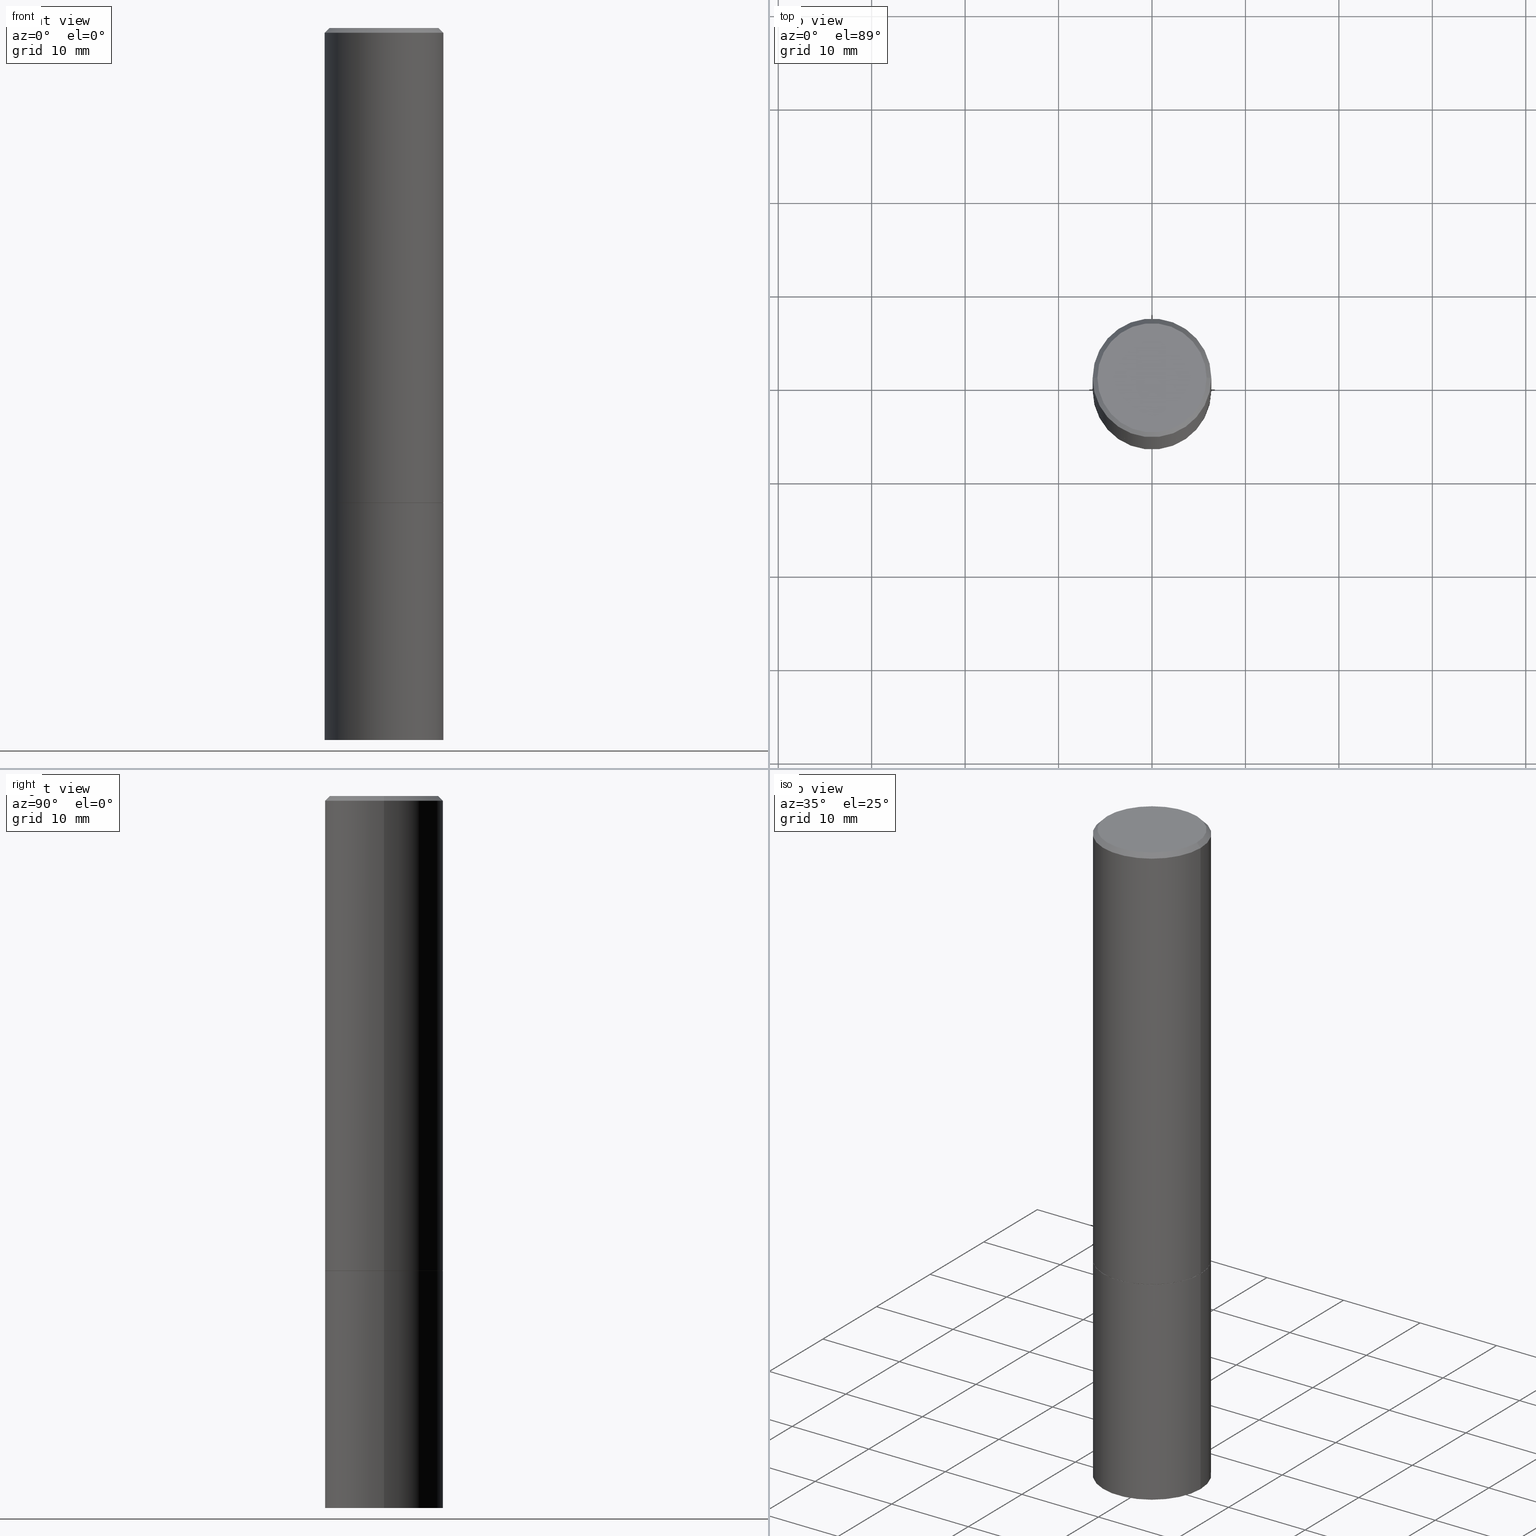
[diagram: canonical four-view strip — front | top / right | iso, engineering-drawing reading convention]
A machine part, canonical four-view strip (front | top / right | iso — engineering-drawing reading convention). The complete STEP part file that produces these views, byte-faithful:
ISO-10303-21;
HEADER;
FILE_DESCRIPTION (( 'STEP AP203' ),
    '1' );
FILE_NAME ('38507.STEP',
    '2024-02-27T23:01:46',
    ( '' ),
    ( '' ),
    'SwSTEP 2.0',
    'SolidWorks 2023',
    '' );
FILE_SCHEMA (( 'CONFIG_CONTROL_DESIGN' ));
ENDSEC;

DATA;
#1 = AXIS2_PLACEMENT_3D ( 'NONE', #33, #71, #12 ) ;
#2 = UNCERTAINTY_MEASURE_WITH_UNIT (LENGTH_MEASURE( 1.000000000000000082E-05 ), #295, 'distance_accuracy_value', 'NONE');
#3 = ADVANCED_FACE ( 'NONE', ( #180 ), #85, .T. ) ;
#4 = MANIFOLD_SOLID_BREP ( 'Body-Move/Copy2[2]', #96 ) ;
#5 = CONICAL_SURFACE ( 'NONE', #162, 0.2489999999999999991, 0.7853981633972775267 ) ;
#6 = LENGTH_MEASURE_WITH_UNIT ( LENGTH_MEASURE( 0.02539999999999999897 ), #76 );
#7 = ADVANCED_FACE ( 'NONE', ( #191 ), #263, .T. ) ;
#8 = DIRECTION ( 'NONE',  ( -2.445468806185136877E-29, 3.491481338843145188E-15, 1.000000000000000000 ) ) ;
#9 = DIRECTION ( 'NONE',  ( -2.445468806185136597E-29, 3.491481338843145583E-15, 1.000000000000000000 ) ) ;
#10 = EDGE_LOOP ( 'NONE', ( #182, #90, #156, #203 ) ) ;
#11 = LOCAL_TIME ( 18, 1, 46.00000000000000000, #233 ) ;
#12 = DIRECTION ( 'NONE',  ( -1.000000000000000000, 6.982962677686266711E-15, 0.000000000000000000 ) ) ;
#13 = CARTESIAN_POINT ( 'NONE',  ( -0.2500000000000000000, -6.952346507707613689E-15, -2.000000000000000444 ) ) ;
#14 = CC_DESIGN_APPROVAL ( #293, ( #112 ) ) ;
#15 = ORIENTED_EDGE ( 'NONE', *, *, #43, .T. ) ;
#16 = CARTESIAN_POINT ( 'NONE',  ( -0.2499999999999996669, 1.675911042644701210E-15, -0.02000000000000007327 ) ) ;
#17 = ORIENTED_EDGE ( 'NONE', *, *, #179, .T. ) ;
#18 = CIRCLE ( 'NONE', #325, 0.2489999999999999991 ) ;
#19 = FACE_OUTER_BOUND ( 'NONE', #123, .T. ) ;
#20 = APPROVAL_ROLE ( '' ) ;
#21 = CC_DESIGN_SECURITY_CLASSIFICATION ( #77, ( #246 ) ) ;
#22 = VERTEX_POINT ( 'NONE', #130 ) ;
#23 = CARTESIAN_POINT ( 'NONE',  ( -0.2500000000000000000, -1.748293572161902502E-15, -1.999000000000000110 ) ) ;
#24 = ORIENTED_EDGE ( 'NONE', *, *, #351, .F. ) ;
#25 = AXIS2_PLACEMENT_3D ( 'NONE', #210, #62, #159 ) ;
#26 = AXIS2_PLACEMENT_3D ( 'NONE', #253, #286, #204 ) ;
#27 = DIRECTION ( 'NONE',  ( -2.445468806185136597E-29, 3.491481338843145583E-15, 1.000000000000000000 ) ) ;
#28 = DATE_TIME_ROLE ( 'classification_date' ) ;
#29 = ADVANCED_FACE ( 'NONE', ( #219 ), #195, .T. ) ;
#30 = PERSON_AND_ORGANIZATION ( #165, #252 ) ;
#31 = DIRECTION ( 'NONE',  ( 1.000000000000000000, -6.982962677686267499E-15, 4.876225828469316729E-29 ) ) ;
#32 = VECTOR ( 'NONE', #349, 39.37007874015748143 ) ;
#33 = CARTESIAN_POINT ( 'NONE',  ( 4.890937612370290675E-31, -6.982962677686316261E-17, -0.02000000000000007327 ) ) ;
#34 = EDGE_CURVE ( 'NONE', #53, #142, #18, .T. ) ;
#35 = CARTESIAN_POINT ( 'NONE',  ( 7.336406418555409790E-29, -1.047444401652943635E-14, -3.000000000000000444 ) ) ;
#36 = CARTESIAN_POINT ( 'NONE',  ( 4.888492143564088712E-29, -6.979471196347448158E-15, -1.999000000000000110 ) ) ;
#37 = FACE_OUTER_BOUND ( 'NONE', #10, .T. ) ;
#38 = ORIENTED_EDGE ( 'NONE', *, *, #184, .T. ) ;
#39 = ORIENTED_EDGE ( 'NONE', *, *, #220, .T. ) ;
#40 = CARTESIAN_POINT ( 'NONE',  ( 4.888492143564088712E-29, -6.979471196347448158E-15, -1.999000000000000110 ) ) ;
#41 = FACE_OUTER_BOUND ( 'NONE', #109, .T. ) ;
#42 = FACE_OUTER_BOUND ( 'NONE', #362, .T. ) ;
#43 = EDGE_CURVE ( 'NONE', #181, #56, #303, .T. ) ;
#44 = FACE_OUTER_BOUND ( 'NONE', #54, .T. ) ;
#45 = CLOSED_SHELL ( 'NONE', ( #3, #65, #121, #243 ) ) ;
#46 = DIRECTION ( 'NONE',  ( 1.000000000000000000, -6.982962677686266711E-15, 0.000000000000000000 ) ) ;
#47 = DIRECTION ( 'NONE',  ( 1.000000000000000000, -6.982962677686266711E-15, 0.000000000000000000 ) ) ;
#48 = LOCAL_TIME ( 18, 1, 46.00000000000000000, #296 ) ;
#49 = VERTEX_POINT ( 'NONE', #23 ) ;
#50 = ADVANCED_FACE ( 'NONE', ( #75 ), #265, .T. ) ;
#51 = ORIENTED_EDGE ( 'NONE', *, *, #352, .F. ) ;
#52 = SHAPE_DEFINITION_REPRESENTATION ( #224, #322 ) ;
#53 = VERTEX_POINT ( 'NONE', #188 ) ;
#54 = EDGE_LOOP ( 'NONE', ( #24, #364 ) ) ;
#55 = DIRECTION ( 'NONE',  ( 1.000000000000000000, -6.982962677686266711E-15, 4.876176775795935793E-29 ) ) ;
#56 = VERTEX_POINT ( 'NONE', #307 ) ;
#57 = LINE ( 'NONE', #185, #287 ) ;
#58 = CARTESIAN_POINT ( 'NONE',  ( -0.2489999999999999991, -5.213711265643643286E-15, -2.000000000000000444 ) ) ;
#59 = CARTESIAN_POINT ( 'NONE',  ( 4.890937612370290675E-31, -6.982962677686316261E-17, -0.02000000000000007327 ) ) ;
#60 = AXIS2_PLACEMENT_3D ( 'NONE', #356, #230, #331 ) ;
#61 = PERSON_AND_ORGANIZATION ( #165, #252 ) ;
#62 = DIRECTION ( 'NONE',  ( -2.445468806185136597E-29, 3.491481338843145583E-15, 1.000000000000000000 ) ) ;
#63 = DIRECTION ( 'NONE',  ( -2.445468806185136597E-29, 3.491481338843145583E-15, 1.000000000000000000 ) ) ;
#64 = APPLICATION_PROTOCOL_DEFINITION ( 'international standard', 'config_control_design', 1994, #250 ) ;
#65 = ADVANCED_FACE ( 'NONE', ( #260 ), #105, .T. ) ;
#66 = LOCAL_TIME ( 18, 1, 46.00000000000000000, #120 ) ;
#67 = AXIS2_PLACEMENT_3D ( 'NONE', #116, #216, #129 ) ;
#68 = CC_DESIGN_PERSON_AND_ORGANIZATION_ASSIGNMENT ( #317, #366, ( #77 ) ) ;
#69 = DIRECTION ( 'NONE',  ( -2.445468806185136597E-29, 3.491481338843145583E-15, 1.000000000000000000 ) ) ;
#70 = CARTESIAN_POINT ( 'NONE',  ( 4.890937612370290675E-31, -6.982962677686316261E-17, -0.02000000000000007327 ) ) ;
#71 = DIRECTION ( 'NONE',  ( 2.445468806185136597E-29, -3.491481338843145583E-15, -1.000000000000000000 ) ) ;
#72 = DIRECTION ( 'NONE',  ( -2.445468806185136597E-29, 3.491481338843145583E-15, 1.000000000000000000 ) ) ;
#73 = EDGE_CURVE ( 'NONE', #176, #56, #217, .T. ) ;
#74 = ORIENTED_EDGE ( 'NONE', *, *, #352, .T. ) ;
#75 = FACE_OUTER_BOUND ( 'NONE', #342, .T. ) ;
#76 =( LENGTH_UNIT ( ) NAMED_UNIT ( * ) SI_UNIT ( $, .METRE. ) );
#77 = SECURITY_CLASSIFICATION ( '', '', #208 ) ;
#78 = DATE_AND_TIME ( #152, #278 ) ;
#79 = CARTESIAN_POINT ( 'NONE',  ( -0.2299999999999996214, 1.640996229256269955E-15, 4.268512490089056766E-18 ) ) ;
#80 = PERSON_AND_ORGANIZATION_ROLE ( 'creator' ) ;
#81 = DIRECTION ( 'NONE',  ( -1.000000000000000000, 6.982962677686265922E-15, -4.876176775795935793E-29 ) ) ;
#82 = DIRECTION ( 'NONE',  ( -2.445468806185136597E-29, 3.491481338843145583E-15, 1.000000000000000000 ) ) ;
#83 = EDGE_LOOP ( 'NONE', ( #146, #311, #238, #234 ) ) ;
#84 = LINE ( 'NONE', #276, #301 ) ;
#85 = CYLINDRICAL_SURFACE ( 'NONE', #25, 0.2500000000000000000 ) ;
#86 = ORIENTED_EDGE ( 'NONE', *, *, #143, .T. ) ;
#87 = CARTESIAN_POINT ( 'NONE',  ( 0.000000000000000000, 0.000000000000000000, 0.000000000000000000 ) ) ;
#88 = ADVANCED_FACE ( 'NONE', ( #304 ), #189, .T. ) ;
#89 = CIRCLE ( 'NONE', #228, 0.2499999999999996669 ) ;
#90 = ORIENTED_EDGE ( 'NONE', *, *, #34, .T. ) ;
#91 = CARTESIAN_POINT ( 'NONE',  ( -1.043851414335219820E-46, 1.490343170380447200E-32, 4.268512490100411279E-18 ) ) ;
#92 = CARTESIAN_POINT ( 'NONE',  ( 0.000000000000000000, 0.000000000000000000, 0.000000000000000000 ) ) ;
#93 = PERSON_AND_ORGANIZATION ( #165, #252 ) ;
#94 = DIRECTION ( 'NONE',  ( -0.7071067811864267805, 7.493145998869918709E-15, 0.7071067811866682540 ) ) ;
#95 = DIRECTION ( 'NONE',  ( 1.000000000000000000, 0.000000000000000000, 0.000000000000000000 ) ) ;
#96 = CLOSED_SHELL ( 'NONE', ( #193, #50, #88, #29, #7, #306, #357, #239 ) ) ;
#97 = CARTESIAN_POINT ( 'NONE',  ( 0.2489999999999999991, -8.721720384430172617E-15, -2.000000000000000444 ) ) ;
#98 = CIRCLE ( 'NONE', #183, 0.2500000000000000000 ) ;
#99 = EDGE_LOOP ( 'NONE', ( #38, #86, #51, #211 ) ) ;
#100 = DESIGN_CONTEXT ( 'detailed design', #268, 'design' ) ;
#101 = DIRECTION ( 'NONE',  ( 1.000000000000000000, -6.982962677686266711E-15, 0.000000000000000000 ) ) ;
#102 = VERTEX_POINT ( 'NONE', #171 ) ;
#103 = EDGE_CURVE ( 'NONE', #56, #118, #277, .T. ) ;
#104 = ORIENTED_EDGE ( 'NONE', *, *, #43, .F. ) ;
#105 = PLANE ( 'NONE',  #136 ) ;
#106 = PERSON_AND_ORGANIZATION ( #165, #252 ) ;
#107 = CIRCLE ( 'NONE', #332, 0.2500000000000000000 ) ;
#108 = DIRECTION ( 'NONE',  ( 1.000000000000000000, -6.982962677686262766E-15, 0.000000000000000000 ) ) ;
#109 = EDGE_LOOP ( 'NONE', ( #147, #289 ) ) ;
#110 = ORIENTED_EDGE ( 'NONE', *, *, #154, .T. ) ;
#111 = DIRECTION ( 'NONE',  ( 2.438088387897960049E-29, -3.491481338843145188E-15, -1.000000000000000000 ) ) ;
#112 = PRODUCT_DEFINITION ( 'UNKNOWN', '', #246, #100 ) ;
#113 = CARTESIAN_POINT ( 'NONE',  ( 4.890937612370274875E-29, -6.982962677686292743E-15, -2.000000000000000444 ) ) ;
#114 = ORIENTED_EDGE ( 'NONE', *, *, #315, .T. ) ;
#115 = AXIS2_PLACEMENT_3D ( 'NONE', #70, #279, #47 ) ;
#116 = CARTESIAN_POINT ( 'NONE',  ( 1.745740669421615390E-15, 0.2499999999999930334, -2.000000000000000888 ) ) ;
#117 = ORIENTED_EDGE ( 'NONE', *, *, #73, .F. ) ;
#118 = VERTEX_POINT ( 'NONE', #199 ) ;
#119 = DIRECTION ( 'NONE',  ( 1.000000000000000000, -6.982962677686266711E-15, 4.876176775795935793E-29 ) ) ;
#120 = COORDINATED_UNIVERSAL_TIME_OFFSET ( 5, 0, .BEHIND. ) ;
#121 = ADVANCED_FACE ( 'NONE', ( #42 ), #172, .F. ) ;
#122 = CYLINDRICAL_SURFACE ( 'NONE', #173, 0.2500000000000000000 ) ;
#123 = EDGE_LOOP ( 'NONE', ( #257, #39, #285, #360 ) ) ;
#124 = VECTOR ( 'NONE', #178, 39.37007874015748143 ) ;
#125 = AXIS2_PLACEMENT_3D ( 'NONE', #36, #161, #133 ) ;
#126 = LINE ( 'NONE', #58, #168 ) ;
#127 = CC_DESIGN_PERSON_AND_ORGANIZATION_ASSIGNMENT ( #93, #316, ( #319 ) ) ;
#128 =( NAMED_UNIT ( * ) PLANE_ANGLE_UNIT ( ) SI_UNIT ( $, .RADIAN. ) );
#129 = DIRECTION ( 'NONE',  ( -1.000000000000000000, 6.982962677686265922E-15, -4.876176775795935793E-29 ) ) ;
#130 = CARTESIAN_POINT ( 'NONE',  ( -0.2500000000000000000, -6.952346507707613689E-15, -3.000000000000000444 ) ) ;
#131 = CIRCLE ( 'NONE', #314, 0.2500000000000000000 ) ;
#132 = CC_DESIGN_DATE_AND_TIME_ASSIGNMENT ( #344, #28, ( #77 ) ) ;
#133 = DIRECTION ( 'NONE',  ( 1.000000000000000000, -6.982962677686266711E-15, 0.000000000000000000 ) ) ;
#134 = EDGE_LOOP ( 'NONE', ( #117, #155, #114, #225 ) ) ;
#135 = DIRECTION ( 'NONE',  ( -2.445468806185136597E-29, 3.491481338843145583E-15, 1.000000000000000000 ) ) ;
#136 = AXIS2_PLACEMENT_3D ( 'NONE', #209, #170, #310 ) ;
#137 = CARTESIAN_POINT ( 'NONE',  ( 4.890937612370274875E-29, -6.982962677686292743E-15, -2.000000000000000444 ) ) ;
#138 = CIRCLE ( 'NONE', #151, 0.2299999999999996214 ) ;
#139 = CARTESIAN_POINT ( 'NONE',  ( 7.336406418555409790E-29, -1.047444401652943635E-14, -3.000000000000000444 ) ) ;
#140 = MANIFOLD_SOLID_BREP ( 'Body-Move/Copy2[1]', #45 ) ;
#141 = LINE ( 'NONE', #16, #160 ) ;
#142 = VERTEX_POINT ( 'NONE', #292 ) ;
#143 = EDGE_CURVE ( 'NONE', #22, #339, #57, .T. ) ;
#144 = APPROVAL_DATE_TIME ( #207, #231 ) ;
#145 = DIRECTION ( 'NONE',  ( -2.445468806185136597E-29, 3.491481338843145583E-15, 1.000000000000000000 ) ) ;
#146 = ORIENTED_EDGE ( 'NONE', *, *, #158, .F. ) ;
#147 = ORIENTED_EDGE ( 'NONE', *, *, #340, .T. ) ;
#148 = AXIS2_PLACEMENT_3D ( 'NONE', #299, #27, #341 ) ;
#149 = ORIENTED_EDGE ( 'NONE', *, *, #184, .F. ) ;
#150 = DIRECTION ( 'NONE',  ( -2.445468806185136597E-29, 3.491481338843145583E-15, 1.000000000000000000 ) ) ;
#151 = AXIS2_PLACEMENT_3D ( 'NONE', #354, #145, #335 ) ;
#152 = CALENDAR_DATE ( 2024, 27, 2 ) ;
#153 = DIRECTION ( 'NONE',  ( -2.445468806185136597E-29, 3.491481338843145583E-15, 1.000000000000000000 ) ) ;
#154 = EDGE_CURVE ( 'NONE', #49, #181, #131, .T. ) ;
#155 = ORIENTED_EDGE ( 'NONE', *, *, #340, .F. ) ;
#156 = ORIENTED_EDGE ( 'NONE', *, *, #214, .T. ) ;
#157 = VERTEX_POINT ( 'NONE', #79 ) ;
#158 = EDGE_CURVE ( 'NONE', #176, #157, #240, .T. ) ;
#159 = DIRECTION ( 'NONE',  ( 1.000000000000000000, -6.982962677686266711E-15, 4.876176775795935793E-29 ) ) ;
#160 = VECTOR ( 'NONE', #305, 39.37007874015748143 ) ;
#161 = DIRECTION ( 'NONE',  ( -2.445468806185136597E-29, 3.491481338843145583E-15, 1.000000000000000000 ) ) ;
#162 = AXIS2_PLACEMENT_3D ( 'NONE', #249, #135, #348 ) ;
#163 = APPROVAL_STATUS ( 'not_yet_approved' ) ;
#164 = DIRECTION ( 'NONE',  ( 1.000000000000000000, -6.982962677686262766E-15, 0.000000000000000000 ) ) ;
#165 = PERSON ( 'UNSPECIFIED', 'UNSPECIFIED', 'UNSPECIFIED', ('UNSPECIFIED'), ('UNSPECIFIED'), ('UNSPECIFIED') ) ;
#166 = PRODUCT_RELATED_PRODUCT_CATEGORY ( 'detail', '', ( #319 ) ) ;
#167 = CARTESIAN_POINT ( 'NONE',  ( 0.2500000000000000000, -8.728703347107858632E-15, -2.000000000000000444 ) ) ;
#168 = VECTOR ( 'NONE', #94, 39.37007874015748143 ) ;
#169 = DIRECTION ( 'NONE',  ( 1.000000000000000000, -6.982962677686266711E-15, 0.000000000000000000 ) ) ;
#170 = DIRECTION ( 'NONE',  ( 2.438088387897960049E-29, -3.491481338843145188E-15, -1.000000000000000000 ) ) ;
#171 = CARTESIAN_POINT ( 'NONE',  ( 0.2500000000000000000, -1.222018468595100303E-14, -3.000000000000000444 ) ) ;
#172 = PLANE ( 'NONE',  #67 ) ;
#173 = AXIS2_PLACEMENT_3D ( 'NONE', #87, #150, #119 ) ;
#174 = CARTESIAN_POINT ( 'NONE',  ( 0.2499999999999998335, -1.745740669421565494E-15, 1.219044193948983107E-29 ) ) ;
#175 = DIRECTION ( 'NONE',  ( 1.000000000000000000, -6.982962677686266711E-15, 0.000000000000000000 ) ) ;
#176 = VERTEX_POINT ( 'NONE', #271 ) ;
#177 = ORIENTED_EDGE ( 'NONE', *, *, #248, .T. ) ;
#178 = DIRECTION ( 'NONE',  ( -2.445468806185136877E-29, 3.491481338843145188E-15, 1.000000000000000000 ) ) ;
#179 = EDGE_CURVE ( 'NONE', #181, #49, #353, .T. ) ;
#180 = FACE_OUTER_BOUND ( 'NONE', #99, .T. ) ;
#181 = VERTEX_POINT ( 'NONE', #323 ) ;
#182 = ORIENTED_EDGE ( 'NONE', *, *, #248, .F. ) ;
#183 = AXIS2_PLACEMENT_3D ( 'NONE', #186, #359, #236 ) ;
#184 = EDGE_CURVE ( 'NONE', #102, #22, #187, .T. ) ;
#185 = CARTESIAN_POINT ( 'NONE',  ( -0.2500000000000000000, 1.776356839400250465E-15, -1.229733772563726445E-29 ) ) ;
#186 = CARTESIAN_POINT ( 'NONE',  ( 4.890937612370273754E-29, -6.982962677686291954E-15, -2.000000000000000444 ) ) ;
#187 = CIRCLE ( 'NONE', #213, 0.2500000000000000000 ) ;
#188 = CARTESIAN_POINT ( 'NONE',  ( -0.2489999999999999991, -5.208412811295420884E-15, -2.000000000000000444 ) ) ;
#189 = CONICAL_SURFACE ( 'NONE', #330, 0.2499999999999996669, 0.7853981633974471688 ) ;
#190 = EDGE_LOOP ( 'NONE', ( #149, #355 ) ) ;
#191 = FACE_OUTER_BOUND ( 'NONE', #205, .T. ) ;
#192 = APPROVAL_PERSON_ORGANIZATION ( #61, #293, #264 ) ;
#193 = ADVANCED_FACE ( 'NONE', ( #194 ), #5, .T. ) ;
#194 = FACE_OUTER_BOUND ( 'NONE', #215, .T. ) ;
#195 = CONICAL_SURFACE ( 'NONE', #1, 0.2499999999999996669, 0.7853981633974471688 ) ;
#196 = CARTESIAN_POINT ( 'NONE',  ( 4.890937612370290675E-31, -6.982962677686316261E-17, -0.02000000000000007327 ) ) ;
#197 = ORIENTED_EDGE ( 'NONE', *, *, #202, .T. ) ;
#198 = CIRCLE ( 'NONE', #327, 0.2489999999999999991 ) ;
#199 = CARTESIAN_POINT ( 'NONE',  ( -0.2499999999999996669, 1.675911042644701210E-15, -0.02000000000000007327 ) ) ;
#200 = DIRECTION ( 'NONE',  ( 2.445468806185136597E-29, -3.491481338843145583E-15, -1.000000000000000000 ) ) ;
#201 = PERSON_AND_ORGANIZATION ( #165, #252 ) ;
#202 = EDGE_CURVE ( 'NONE', #49, #118, #320, .T. ) ;
#203 = ORIENTED_EDGE ( 'NONE', *, *, #154, .F. ) ;
#204 = DIRECTION ( 'NONE',  ( 1.000000000000000000, -6.982962677686265922E-15, 4.876176775795935793E-29 ) ) ;
#205 = EDGE_LOOP ( 'NONE', ( #212, #110, #15, #227 ) ) ;
#206 = VERTEX_POINT ( 'NONE', #167 ) ;
#207 = DATE_AND_TIME ( #333, #66 ) ;
#208 = SECURITY_CLASSIFICATION_LEVEL ( 'unclassified' ) ;
#209 = CARTESIAN_POINT ( 'NONE',  ( 1.745740669421639647E-15, 0.2499999999999895084, -3.000000000000001332 ) ) ;
#210 = CARTESIAN_POINT ( 'NONE',  ( 0.000000000000000000, 0.000000000000000000, 0.000000000000000000 ) ) ;
#211 = ORIENTED_EDGE ( 'NONE', *, *, #300, .F. ) ;
#212 = ORIENTED_EDGE ( 'NONE', *, *, #202, .F. ) ;
#213 = AXIS2_PLACEMENT_3D ( 'NONE', #35, #63, #164 ) ;
#214 = EDGE_CURVE ( 'NONE', #142, #181, #345, .T. ) ;
#215 = EDGE_LOOP ( 'NONE', ( #256, #177, #275, #302 ) ) ;
#216 = DIRECTION ( 'NONE',  ( 2.438088387897960049E-29, -3.491481338843145188E-15, -1.000000000000000000 ) ) ;
#217 = LINE ( 'NONE', #324, #244 ) ;
#218 = AXIS2_PLACEMENT_3D ( 'NONE', #245, #361, #55 ) ;
#219 = FACE_OUTER_BOUND ( 'NONE', #134, .T. ) ;
#220 = EDGE_CURVE ( 'NONE', #22, #102, #107, .T. ) ;
#221 = COORDINATED_UNIVERSAL_TIME_OFFSET ( 5, 0, .BEHIND. ) ;
#222 = DATE_AND_TIME ( #297, #346 ) ;
#223 = APPROVAL ( #163, 'UNSPECIFIED' ) ;
#224 = PRODUCT_DEFINITION_SHAPE ( 'NONE', 'NONE',  #112 ) ;
#225 = ORIENTED_EDGE ( 'NONE', *, *, #273, .T. ) ;
#226 = PERSON_AND_ORGANIZATION ( #165, #252 ) ;
#227 = ORIENTED_EDGE ( 'NONE', *, *, #273, .F. ) ;
#228 = AXIS2_PLACEMENT_3D ( 'NONE', #59, #153, #259 ) ;
#229 = ORIENTED_EDGE ( 'NONE', *, *, #103, .F. ) ;
#230 = DIRECTION ( 'NONE',  ( -2.445468806185136597E-29, 3.491481338843145583E-15, 1.000000000000000000 ) ) ;
#231 = APPROVAL ( #291, 'UNSPECIFIED' ) ;
#232 = CC_DESIGN_APPROVAL ( #223, ( #77 ) ) ;
#233 = COORDINATED_UNIVERSAL_TIME_OFFSET ( 5, 0, .BEHIND. ) ;
#234 = ORIENTED_EDGE ( 'NONE', *, *, #315, .F. ) ;
#235 = PERSON_AND_ORGANIZATION_ROLE ( 'design_supplier' ) ;
#236 = DIRECTION ( 'NONE',  ( 1.000000000000000000, -6.982962677686266711E-15, 0.000000000000000000 ) ) ;
#237 = DIRECTION ( 'NONE',  ( -2.445468806185136597E-29, 3.491481338843145583E-15, 1.000000000000000000 ) ) ;
#238 = ORIENTED_EDGE ( 'NONE', *, *, #103, .T. ) ;
#239 = ADVANCED_FACE ( 'NONE', ( #41 ), #254, .F. ) ;
#240 = CIRCLE ( 'NONE', #282, 0.2299999999999996214 ) ;
#241 = DATE_TIME_ROLE ( 'creation_date' ) ;
#242 = CALENDAR_DATE ( 2024, 27, 2 ) ;
#243 = ADVANCED_FACE ( 'NONE', ( #19 ), #122, .T. ) ;
#244 = VECTOR ( 'NONE', #329, 39.37007874015748143 ) ;
#245 = CARTESIAN_POINT ( 'NONE',  ( 0.000000000000000000, 0.000000000000000000, 0.000000000000000000 ) ) ;
#246 = PRODUCT_DEFINITION_FORMATION_WITH_SPECIFIED_SOURCE ( 'ANY', '', #319, .NOT_KNOWN. ) ;
#247 = APPROVAL_STATUS ( 'not_yet_approved' ) ;
#248 = EDGE_CURVE ( 'NONE', #53, #49, #126, .T. ) ;
#249 = CARTESIAN_POINT ( 'NONE',  ( 4.890937612370274875E-29, -6.982962677686292743E-15, -2.000000000000000444 ) ) ;
#250 = APPLICATION_CONTEXT ( 'configuration controlled 3d designs of mechanical parts and assemblies' ) ;
#251 = CARTESIAN_POINT ( 'NONE',  ( -0.2499999999999998335, 1.776356839400249281E-15, -1.229733772563725605E-29 ) ) ;
#252 = ORGANIZATION ( 'UNSPECIFIED', 'UNSPECIFIED', '' ) ;
#253 = CARTESIAN_POINT ( 'NONE',  ( 4.890937612370274875E-29, -6.982962677686292743E-15, -2.000000000000000444 ) ) ;
#254 = PLANE ( 'NONE',  #321 ) ;
#255 = PLANE ( 'NONE',  #26 ) ;
#256 = ORIENTED_EDGE ( 'NONE', *, *, #351, .T. ) ;
#257 = ORIENTED_EDGE ( 'NONE', *, *, #143, .F. ) ;
#258 = CONICAL_SURFACE ( 'NONE', #60, 0.2489999999999999991, 0.7853981633972775267 ) ;
#259 = DIRECTION ( 'NONE',  ( 1.000000000000000000, -6.982962677686266711E-15, 0.000000000000000000 ) ) ;
#260 = FACE_OUTER_BOUND ( 'NONE', #190, .T. ) ;
#261 = ORIENTED_EDGE ( 'NONE', *, *, #284, .T. ) ;
#262 = AXIS2_PLACEMENT_3D ( 'NONE', #92, #343, #95 ) ;
#263 = CYLINDRICAL_SURFACE ( 'NONE', #148, 0.2499999999999998335 ) ;
#264 = APPROVAL_ROLE ( '' ) ;
#265 = CYLINDRICAL_SURFACE ( 'NONE', #218, 0.2499999999999998335 ) ;
#266 = DIRECTION ( 'NONE',  ( 0.7071067811864267805, -2.468850131080992517E-15, 0.7071067811866682540 ) ) ;
#267 = MECHANICAL_CONTEXT ( 'NONE', #250, 'mechanical' ) ;
#268 = APPLICATION_CONTEXT ( 'configuration controlled 3d designs of mechanical parts and assemblies' ) ;
#269 = AXIS2_PLACEMENT_3D ( 'NONE', #328, #82, #175 ) ;
#270 = APPROVAL_DATE_TIME ( #222, #293 ) ;
#271 = CARTESIAN_POINT ( 'NONE',  ( 0.2299999999999996214, -1.681434332853596842E-15, 4.268512490111905999E-18 ) ) ;
#272 =( NAMED_UNIT ( * ) SI_UNIT ( $, .STERADIAN. ) SOLID_ANGLE_UNIT ( ) );
#273 = EDGE_CURVE ( 'NONE', #118, #56, #89, .T. ) ;
#274 = DIRECTION ( 'NONE',  ( -2.445468806185136877E-29, 3.491481338843145188E-15, 1.000000000000000000 ) ) ;
#275 = ORIENTED_EDGE ( 'NONE', *, *, #179, .F. ) ;
#276 = CARTESIAN_POINT ( 'NONE',  ( 0.2500000000000000000, -1.745740669421566678E-15, 1.219044193948983948E-29 ) ) ;
#277 = CIRCLE ( 'NONE', #115, 0.2499999999999996669 ) ;
#278 = LOCAL_TIME ( 18, 1, 46.00000000000000000, #290 ) ;
#279 = DIRECTION ( 'NONE',  ( -2.445468806185136597E-29, 3.491481338843145583E-15, 1.000000000000000000 ) ) ;
#280 = DIMENSIONAL_EXPONENTS ( 1.000000000000000000, 0.000000000000000000, 0.000000000000000000, 0.000000000000000000, 0.000000000000000000, 0.000000000000000000, 0.000000000000000000 ) ;
#281 = CARTESIAN_POINT ( 'NONE',  ( 1.606081415867838504E-15, 0.2299999999999996214, -8.009064516888719966E-16 ) ) ;
#282 = AXIS2_PLACEMENT_3D ( 'NONE', #91, #237, #31 ) ;
#283 = CC_DESIGN_APPROVAL ( #231, ( #246 ) ) ;
#284 = EDGE_CURVE ( 'NONE', #339, #206, #98, .T. ) ;
#285 = ORIENTED_EDGE ( 'NONE', *, *, #300, .T. ) ;
#286 = DIRECTION ( 'NONE',  ( -2.438088387897960049E-29, 3.491481338843145188E-15, 1.000000000000000000 ) ) ;
#287 = VECTOR ( 'NONE', #274, 39.37007874015748143 ) ;
#288 = PERSON_AND_ORGANIZATION_ROLE ( 'creator' ) ;
#289 = ORIENTED_EDGE ( 'NONE', *, *, #158, .T. ) ;
#290 = COORDINATED_UNIVERSAL_TIME_OFFSET ( 5, 0, .BEHIND. ) ;
#291 = APPROVAL_STATUS ( 'not_yet_approved' ) ;
#292 = CARTESIAN_POINT ( 'NONE',  ( 0.2489999999999999991, -8.721720384430172617E-15, -2.000000000000000444 ) ) ;
#293 = APPROVAL ( #247, 'UNSPECIFIED' ) ;
#294 = APPROVAL_PERSON_ORGANIZATION ( #226, #223, #20 ) ;
#295 =( CONVERSION_BASED_UNIT ( 'INCH', #6 ) LENGTH_UNIT ( ) NAMED_UNIT ( #280 ) );
#296 = COORDINATED_UNIVERSAL_TIME_OFFSET ( 5, 0, .BEHIND. ) ;
#297 = CALENDAR_DATE ( 2024, 27, 2 ) ;
#298 = CC_DESIGN_PERSON_AND_ORGANIZATION_ASSIGNMENT ( #30, #288, ( #112 ) ) ;
#299 = CARTESIAN_POINT ( 'NONE',  ( 0.000000000000000000, 0.000000000000000000, 0.000000000000000000 ) ) ;
#300 = EDGE_CURVE ( 'NONE', #102, #206, #84, .T. ) ;
#301 = VECTOR ( 'NONE', #8, 39.37007874015748143 ) ;
#302 = ORIENTED_EDGE ( 'NONE', *, *, #214, .F. ) ;
#303 = LINE ( 'NONE', #174, #124 ) ;
#304 = FACE_OUTER_BOUND ( 'NONE', #83, .T. ) ;
#305 = DIRECTION ( 'NONE',  ( -0.7071067811865466846, 2.468850131082247989E-15, -0.7071067811865483499 ) ) ;
#306 = ADVANCED_FACE ( 'NONE', ( #37 ), #258, .T. ) ;
#307 = CARTESIAN_POINT ( 'NONE',  ( 0.2499999999999996669, -1.784954126219743428E-15, -0.02000000000000007327 ) ) ;
#308 = VECTOR ( 'NONE', #266, 39.37007874015748143 ) ;
#309 = PERSON_AND_ORGANIZATION ( #165, #252 ) ;
#310 = DIRECTION ( 'NONE',  ( -1.000000000000000000, 6.982962677686265922E-15, -4.876176775795935793E-29 ) ) ;
#311 = ORIENTED_EDGE ( 'NONE', *, *, #73, .T. ) ;
#312 = CC_DESIGN_DATE_AND_TIME_ASSIGNMENT ( #78, #241, ( #112 ) ) ;
#313 = APPROVAL_DATE_TIME ( #338, #223 ) ;
#314 = AXIS2_PLACEMENT_3D ( 'NONE', #40, #9, #101 ) ;
#315 = EDGE_CURVE ( 'NONE', #157, #118, #141, .T. ) ;
#316 = PERSON_AND_ORGANIZATION_ROLE ( 'design_owner' ) ;
#317 = PERSON_AND_ORGANIZATION ( #165, #252 ) ;
#318 = APPROVAL_PERSON_ORGANIZATION ( #201, #231, #358 ) ;
#319 = PRODUCT ( '38507', '38507', '', ( #267 ) ) ;
#320 = LINE ( 'NONE', #251, #32 ) ;
#321 = AXIS2_PLACEMENT_3D ( 'NONE', #281, #111, #81 ) ;
#322 = ADVANCED_BREP_SHAPE_REPRESENTATION ( '38507', ( #140, #4, #262 ), #365 ) ;
#323 = CARTESIAN_POINT ( 'NONE',  ( 0.2500000000000000000, -8.725211865769015625E-15, -1.999000000000000110 ) ) ;
#324 = CARTESIAN_POINT ( 'NONE',  ( 0.2499999999999996669, -1.784954126219743428E-15, -0.02000000000000007327 ) ) ;
#325 = AXIS2_PLACEMENT_3D ( 'NONE', #137, #336, #169 ) ;
#326 = DIRECTION ( 'NONE',  ( -1.000000000000000000, 6.982962677686266711E-15, 0.000000000000000000 ) ) ;
#327 = AXIS2_PLACEMENT_3D ( 'NONE', #113, #72, #46 ) ;
#328 = CARTESIAN_POINT ( 'NONE',  ( 4.890937612370273754E-29, -6.982962677686291954E-15, -2.000000000000000444 ) ) ;
#329 = DIRECTION ( 'NONE',  ( 0.7071067811865466846, -7.319954787623252890E-15, -0.7071067811865483499 ) ) ;
#330 = AXIS2_PLACEMENT_3D ( 'NONE', #196, #200, #326 ) ;
#331 = DIRECTION ( 'NONE',  ( 1.000000000000000000, -6.982962677686266711E-15, 0.000000000000000000 ) ) ;
#332 = AXIS2_PLACEMENT_3D ( 'NONE', #139, #69, #108 ) ;
#333 = CALENDAR_DATE ( 2024, 27, 2 ) ;
#334 = CALENDAR_DATE ( 2024, 27, 2 ) ;
#335 = DIRECTION ( 'NONE',  ( 1.000000000000000000, -6.982962677686267499E-15, 4.876225828469316729E-29 ) ) ;
#336 = DIRECTION ( 'NONE',  ( -2.445468806185136597E-29, 3.491481338843145583E-15, 1.000000000000000000 ) ) ;
#337 = CC_DESIGN_PERSON_AND_ORGANIZATION_ASSIGNMENT ( #106, #235, ( #246 ) ) ;
#338 = DATE_AND_TIME ( #334, #11 ) ;
#339 = VERTEX_POINT ( 'NONE', #13 ) ;
#340 = EDGE_CURVE ( 'NONE', #157, #176, #138, .T. ) ;
#341 = DIRECTION ( 'NONE',  ( 1.000000000000000000, -6.982962677686266711E-15, 4.876176775795935793E-29 ) ) ;
#342 = EDGE_LOOP ( 'NONE', ( #17, #197, #229, #104 ) ) ;
#343 = DIRECTION ( 'NONE',  ( 0.000000000000000000, 0.000000000000000000, 1.000000000000000000 ) ) ;
#344 = DATE_AND_TIME ( #242, #48 ) ;
#345 = LINE ( 'NONE', #97, #308 ) ;
#346 = LOCAL_TIME ( 18, 1, 46.00000000000000000, #221 ) ;
#347 = APPLICATION_PROTOCOL_DEFINITION ( 'international standard', 'config_control_design', 1994, #268 ) ;
#348 = DIRECTION ( 'NONE',  ( 1.000000000000000000, -6.982962677686266711E-15, 0.000000000000000000 ) ) ;
#349 = DIRECTION ( 'NONE',  ( -2.445468806185136877E-29, 3.491481338843145188E-15, 1.000000000000000000 ) ) ;
#350 = CIRCLE ( 'NONE', #269, 0.2500000000000000000 ) ;
#351 = EDGE_CURVE ( 'NONE', #142, #53, #198, .T. ) ;
#352 = EDGE_CURVE ( 'NONE', #206, #339, #350, .T. ) ;
#353 = CIRCLE ( 'NONE', #125, 0.2500000000000000000 ) ;
#354 = CARTESIAN_POINT ( 'NONE',  ( -1.043851414335219820E-46, 1.490343170380447200E-32, 4.268512490100411279E-18 ) ) ;
#355 = ORIENTED_EDGE ( 'NONE', *, *, #220, .F. ) ;
#356 = CARTESIAN_POINT ( 'NONE',  ( 4.890937612370274875E-29, -6.982962677686292743E-15, -2.000000000000000444 ) ) ;
#357 = ADVANCED_FACE ( 'NONE', ( #44 ), #255, .F. ) ;
#358 = APPROVAL_ROLE ( '' ) ;
#359 = DIRECTION ( 'NONE',  ( -2.445468806185136597E-29, 3.491481338843145583E-15, 1.000000000000000000 ) ) ;
#360 = ORIENTED_EDGE ( 'NONE', *, *, #284, .F. ) ;
#361 = DIRECTION ( 'NONE',  ( -2.445468806185136597E-29, 3.491481338843145583E-15, 1.000000000000000000 ) ) ;
#362 = EDGE_LOOP ( 'NONE', ( #74, #261 ) ) ;
#363 = CC_DESIGN_PERSON_AND_ORGANIZATION_ASSIGNMENT ( #309, #80, ( #246 ) ) ;
#364 = ORIENTED_EDGE ( 'NONE', *, *, #34, .F. ) ;
#365 =( GEOMETRIC_REPRESENTATION_CONTEXT ( 3 ) GLOBAL_UNCERTAINTY_ASSIGNED_CONTEXT ( ( #2 ) ) GLOBAL_UNIT_ASSIGNED_CONTEXT ( ( #295, #128, #272 ) ) REPRESENTATION_CONTEXT ( 'NONE', 'WORKASPACE' ) );
#366 = PERSON_AND_ORGANIZATION_ROLE ( 'classification_officer' ) ;
ENDSEC;
END-ISO-10303-21;
